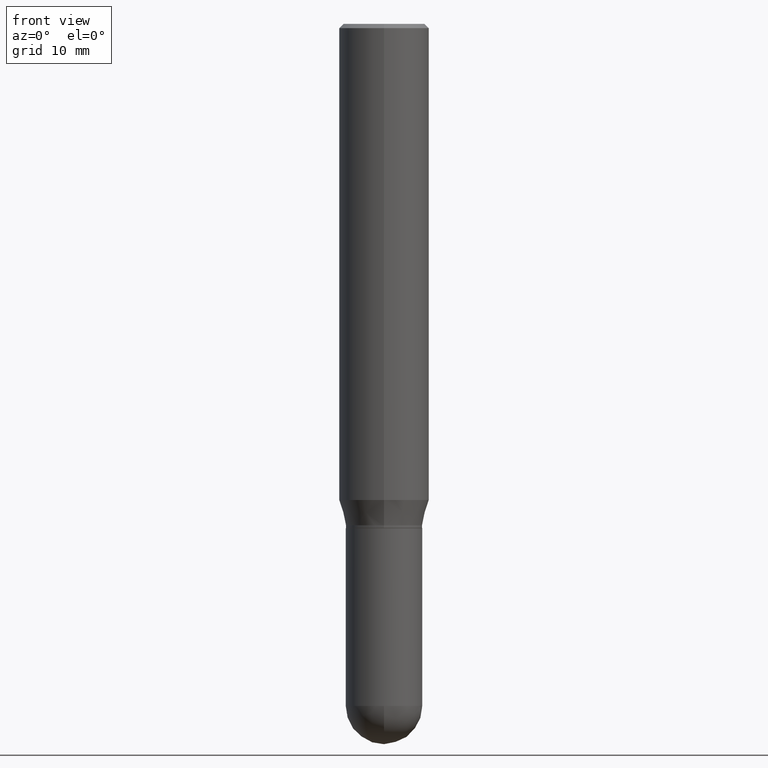
[diagram: clean part render]
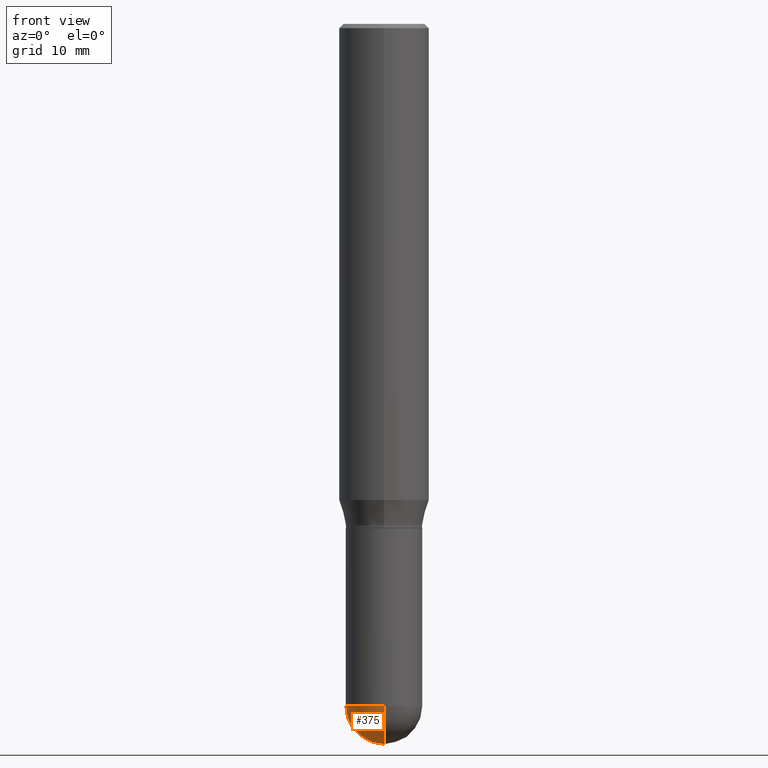
[diagram: same view with one face highlighted and labeled with its STEP entity id]
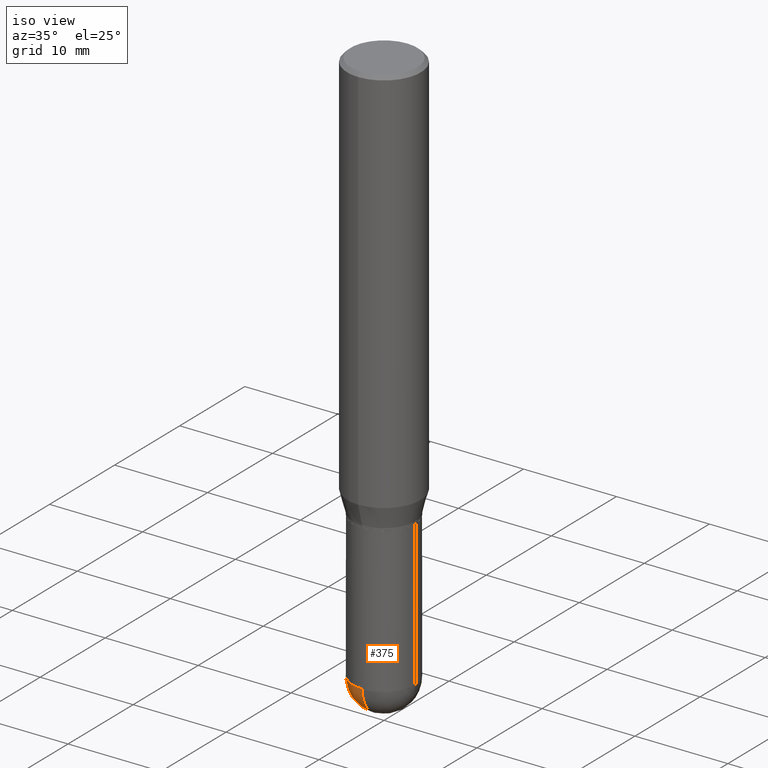
[diagram: same view with one face highlighted and labeled with its STEP entity id]
A machine part, front view. The second image highlights one B-rep face of the part: STEP entity #375.
A second angle (iso view) of the same face is appended — the face is thin or edge-on in the first view.
In plain terms, the highlighted spherical surface has radius 3.3731 mm.
Its self-contained STEP definition (entity closure, byte-faithful):
#7 = EDGE_CURVE ( 'NONE', #434, #440, #14, .T. ) ;
#14 = CIRCLE ( 'NONE', #307, 0.1328000000000000014 ) ;
#21 = CARTESIAN_POINT ( 'NONE',  ( 5.777557149681153201E-29, -8.281297934802172088E-15, -2.367199999999999971 ) ) ;
#62 = CARTESIAN_POINT ( 'NONE',  ( 9.273374435967940064E-16, 0.1327999999999917302, -2.367200000000000415 ) ) ;
#71 = DIRECTION ( 'NONE',  ( -2.445468806185136597E-29, 3.491481338843145583E-15, 1.000000000000000000 ) ) ;
#74 = CARTESIAN_POINT ( 'NONE',  ( 5.777557149681153201E-29, -8.281297934802172088E-15, -2.367199999999999971 ) ) ;
#81 = VERTEX_POINT ( 'NONE', #502 ) ;
#89 = AXIS2_PLACEMENT_3D ( 'NONE', #136, #291, #452 ) ;
#92 = CARTESIAN_POINT ( 'NONE',  ( -0.1328000000000000014, -6.243962731053086807E-15, -2.367199999999999971 ) ) ;
#101 = AXIS2_PLACEMENT_3D ( 'NONE', #74, #424, #227 ) ;
#106 = DIRECTION ( 'NONE',  ( 1.000000000000000000, -6.982962677686263555E-15, 0.000000000000000000 ) ) ;
#109 = EDGE_CURVE ( 'NONE', #81, #292, #118, .T. ) ;
#118 = CIRCLE ( 'NONE', #101, 0.1328000000000000014 ) ;
#125 = CARTESIAN_POINT ( 'NONE',  ( -9.436007530893550753E-16, -0.1328000000000082725, -2.367199999999999083 ) ) ;
#136 = CARTESIAN_POINT ( 'NONE',  ( 5.788913758001455526E-29, -8.265034625309493084E-15, -2.367199999999999971 ) ) ;
#152 = CARTESIAN_POINT ( 'NONE',  ( 5.788913758001455526E-29, -8.265034625309493084E-15, -2.367199999999999971 ) ) ;
#168 = DIRECTION ( 'NONE',  ( -1.000000000000000000, 6.982962677686265922E-15, -4.883557194083112340E-29 ) ) ;
#171 = SPHERICAL_SURFACE ( 'NONE', #183, 0.1328000000000000014 ) ;
#173 = CIRCLE ( 'NONE', #459, 0.1328000000000000014 ) ;
#183 = AXIS2_PLACEMENT_3D ( 'NONE', #21, #168, #329 ) ;
#194 = DIRECTION ( 'NONE',  ( 1.000000000000000000, -6.982962677686265922E-15, 4.883557194083112340E-29 ) ) ;
#204 = EDGE_LOOP ( 'NONE', ( #311, #456, #336, #216 ) ) ;
#216 = ORIENTED_EDGE ( 'NONE', *, *, #7, .F. ) ;
#227 = DIRECTION ( 'NONE',  ( -7.105427357601001859E-15, -1.000000000000000000, 0.000000000000000000 ) ) ;
#261 = CARTESIAN_POINT ( 'NONE',  ( 5.777557149681153201E-29, -8.281297934802172088E-15, -2.367199999999999971 ) ) ;
#291 = DIRECTION ( 'NONE',  ( -2.445468806185136597E-29, 3.491481338843145583E-15, 1.000000000000000000 ) ) ;
#292 = VERTEX_POINT ( 'NONE', #125 ) ;
#307 = AXIS2_PLACEMENT_3D ( 'NONE', #152, #71, #106 ) ;
#311 = ORIENTED_EDGE ( 'NONE', *, *, #509, .F. ) ;
#329 = DIRECTION ( 'NONE',  ( 6.982962677686265922E-15, 1.000000000000000000, -4.114228906120878260E-15 ) ) ;
#336 = ORIENTED_EDGE ( 'NONE', *, *, #475, .F. ) ;
#345 = DIRECTION ( 'NONE',  ( 6.982962677686266711E-15, 1.000000000000000000, 0.000000000000000000 ) ) ;
#351 = CIRCLE ( 'NONE', #89, 0.1328000000000000014 ) ;
#375 = ADVANCED_FACE ( 'NONE', ( #495 ), #171, .T. ) ;
#424 = DIRECTION ( 'NONE',  ( -1.000000000000000000, 7.105427357601001070E-15, -4.926315508542082329E-29 ) ) ;
#434 = VERTEX_POINT ( 'NONE', #62 ) ;
#440 = VERTEX_POINT ( 'NONE', #92 ) ;
#452 = DIRECTION ( 'NONE',  ( 1.000000000000000000, -6.982962677686263555E-15, 0.000000000000000000 ) ) ;
#456 = ORIENTED_EDGE ( 'NONE', *, *, #109, .T. ) ;
#459 = AXIS2_PLACEMENT_3D ( 'NONE', #261, #194, #345 ) ;
#475 = EDGE_CURVE ( 'NONE', #440, #292, #351, .T. ) ;
#495 = FACE_OUTER_BOUND ( 'NONE', #204, .T. ) ;
#502 = CARTESIAN_POINT ( 'NONE',  ( 6.107993711302689769E-29, -8.736835001854202867E-15, -2.500000000000000000 ) ) ;
#509 = EDGE_CURVE ( 'NONE', #81, #434, #173, .T. ) ;